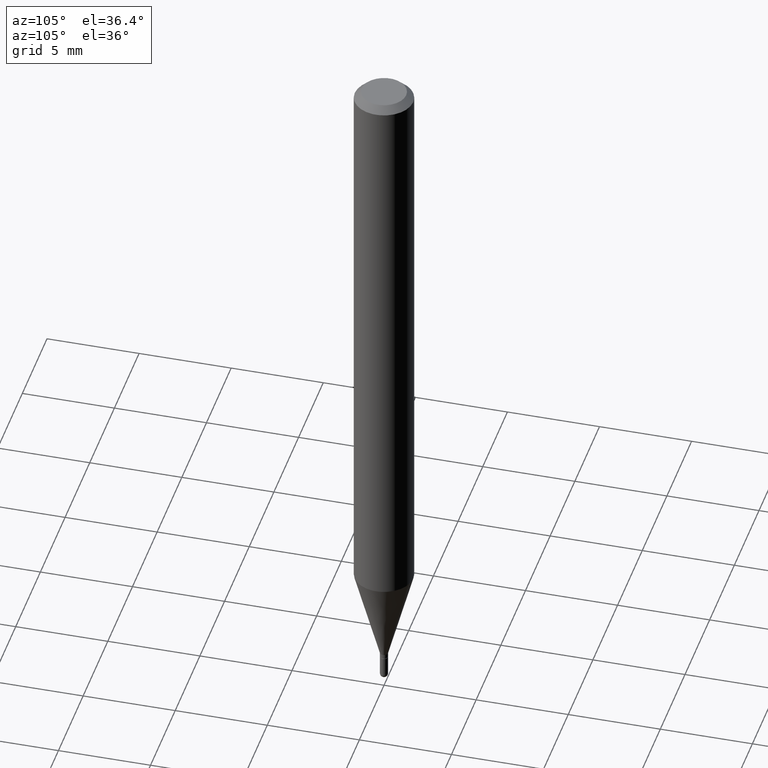
[diagram: clean part render]
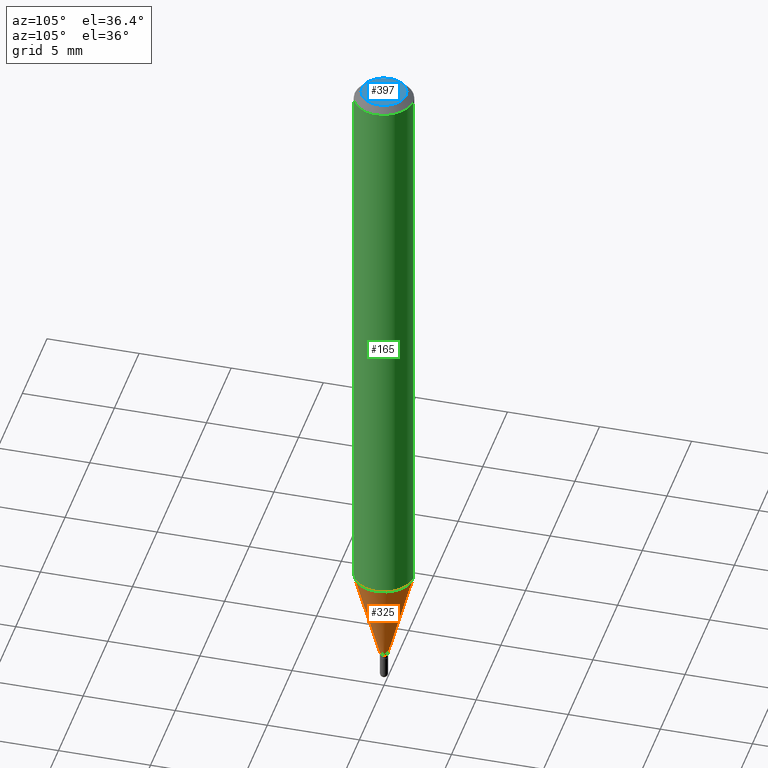
[diagram: same view with three faces highlighted in distinct colors, each labeled with its STEP entity id]
A machine part, auxiliary view with three faces highlighted in distinct colors.
Their STEP definitions:

[orange] entity #325 — the highlighted conical surface has half-angle 15 deg.
#6 = VECTOR ( 'NONE', #143, 39.37007874015748854 ) ;
#7 = ORIENTED_EDGE ( 'NONE', *, *, #223, .T. ) ;
#14 = VECTOR ( 'NONE', #458, 39.37007874015748854 ) ;
#22 = CARTESIAN_POINT ( 'NONE',  ( -5.935518276029754545E-17, -0.008500000000004949777, -1.439000000000000057 ) ) ;
#34 = CARTESIAN_POINT ( 'NONE',  ( 3.519016899302555571E-29, -5.024259852045384731E-15, -1.439000000000000057 ) ) ;
#39 = VERTEX_POINT ( 'NONE', #287 ) ;
#43 = AXIS2_PLACEMENT_3D ( 'NONE', #34, #472, #438 ) ;
#51 = DIRECTION ( 'NONE',  ( -6.982962677686265922E-15, -1.000000000000000000, 4.370956789862821150E-15 ) ) ;
#54 = AXIS2_PLACEMENT_3D ( 'NONE', #410, #172, #279 ) ;
#63 = CARTESIAN_POINT ( 'NONE',  ( 6.039613253964316839E-17, 0.008499999999994900524, -1.439000000000000057 ) ) ;
#64 = CIRCLE ( 'NONE', #54, 0.008499999999999924283 ) ;
#72 = CARTESIAN_POINT ( 'NONE',  ( -4.364351673553615448E-16, -0.06250000000000432987, -1.237469256391281025 ) ) ;
#78 = FACE_OUTER_BOUND ( 'NONE', #442, .T. ) ;
#88 = CARTESIAN_POINT ( 'NONE',  ( 3.026181532736820880E-29, -4.320616471874337683E-15, -1.237469256391281247 ) ) ;
#89 = EDGE_CURVE ( 'NONE', #452, #120, #64, .T. ) ;
#96 = EDGE_CURVE ( 'NONE', #146, #39, #243, .T. ) ;
#102 = LINE ( 'NONE', #22, #14 ) ;
#114 = CONICAL_SURFACE ( 'NONE', #43, 0.008499999999999924283, 0.2617993877991505181 ) ;
#120 = VERTEX_POINT ( 'NONE', #184 ) ;
#143 = DIRECTION ( 'NONE',  ( 1.839019923739601893E-15, 0.2588190451025252359, 0.9659258262890670910 ) ) ;
#146 = VERTEX_POINT ( 'NONE', #72 ) ;
#172 = DIRECTION ( 'NONE',  ( -2.445459971718245083E-29, 3.491493990302560829E-15, 1.000000000000000000 ) ) ;
#184 = CARTESIAN_POINT ( 'NONE',  ( 2.522426711948681826E-16, 0.008499999999994900524, -1.439000000000000057 ) ) ;
#223 = EDGE_CURVE ( 'NONE', #120, #39, #506, .T. ) ;
#243 = CIRCLE ( 'NONE', #347, 0.06250000000000000000 ) ;
#248 = CARTESIAN_POINT ( 'NONE',  ( -5.935518276029754545E-17, -0.008500000000004949777, -1.439000000000000057 ) ) ;
#259 = EDGE_CURVE ( 'NONE', #452, #146, #102, .T. ) ;
#279 = DIRECTION ( 'NONE',  ( -6.982962677686266711E-15, -1.000000000000000000, 0.000000000000000000 ) ) ;
#287 = CARTESIAN_POINT ( 'NONE',  ( 4.440892098500927901E-16, 0.06249999999999569095, -1.237469256391281691 ) ) ;
#325 = ADVANCED_FACE ( 'NONE', ( #78 ), #114, .T. ) ;
#347 = AXIS2_PLACEMENT_3D ( 'NONE', #88, #404, #51 ) ;
#380 = ORIENTED_EDGE ( 'NONE', *, *, #96, .F. ) ;
#404 = DIRECTION ( 'NONE',  ( -2.445459971718245083E-29, 3.491493990302560829E-15, 1.000000000000000000 ) ) ;
#410 = CARTESIAN_POINT ( 'NONE',  ( 3.519016899302555571E-29, -5.024259852045384731E-15, -1.439000000000000057 ) ) ;
#413 = ORIENTED_EDGE ( 'NONE', *, *, #89, .T. ) ;
#438 = DIRECTION ( 'NONE',  ( -6.982962677686266711E-15, -1.000000000000000000, 0.000000000000000000 ) ) ;
#442 = EDGE_LOOP ( 'NONE', ( #413, #7, #380, #512 ) ) ;
#452 = VERTEX_POINT ( 'NONE', #248 ) ;
#458 = DIRECTION ( 'NONE',  ( -1.807323732225331717E-15, -0.2588190451025184080, 0.9659258262890689783 ) ) ;
#472 = DIRECTION ( 'NONE',  ( -2.445459971718245083E-29, 3.491493990302560829E-15, 1.000000000000000000 ) ) ;
#506 = LINE ( 'NONE', #63, #6 ) ;
#512 = ORIENTED_EDGE ( 'NONE', *, *, #259, .F. ) ;

[blue] entity #397 — the highlighted planar face has unit normal (0, -0, -1).
#32 = ORIENTED_EDGE ( 'NONE', *, *, #289, .T. ) ;
#41 = PLANE ( 'NONE',  #260 ) ;
#62 = CARTESIAN_POINT ( 'NONE',  ( -5.856613589596461152E-45, 8.361752548839639788E-31, 2.394892436322091243E-16 ) ) ;
#80 = EDGE_CURVE ( 'NONE', #368, #232, #81, .T. ) ;
#81 = CIRCLE ( 'NONE', #502, 0.04749999999999999362 ) ;
#125 = DIRECTION ( 'NONE',  ( -6.982962677686266711E-15, -1.000000000000000000, 3.491493990302561618E-15 ) ) ;
#153 = CIRCLE ( 'NONE', #420, 0.04749999999999999362 ) ;
#181 = DIRECTION ( 'NONE',  ( -2.445459971718245083E-29, 3.491493990302560829E-15, 1.000000000000000000 ) ) ;
#188 = FACE_OUTER_BOUND ( 'NONE', #299, .T. ) ;
#210 = CARTESIAN_POINT ( 'NONE',  ( -5.856613589596461152E-45, 8.361752548839639788E-31, 2.394892436322091243E-16 ) ) ;
#232 = VERTEX_POINT ( 'NONE', #298 ) ;
#257 = DIRECTION ( 'NONE',  ( -6.982962677686266711E-15, -1.000000000000000000, 3.491493990302561618E-15 ) ) ;
#260 = AXIS2_PLACEMENT_3D ( 'NONE', #467, #350, #306 ) ;
#289 = EDGE_CURVE ( 'NONE', #232, #368, #153, .T. ) ;
#298 = CARTESIAN_POINT ( 'NONE',  ( 3.840629472727447874E-16, 0.04749999999999999362, 7.364327909283752044E-17 ) ) ;
#299 = EDGE_LOOP ( 'NONE', ( #32, #459 ) ) ;
#306 = DIRECTION ( 'NONE',  ( 6.982962677686265922E-15, 1.000000000000000000, -3.491493990302560829E-15 ) ) ;
#350 = DIRECTION ( 'NONE',  ( 2.445459971718244803E-29, -3.491493990302560829E-15, -1.000000000000000000 ) ) ;
#358 = CARTESIAN_POINT ( 'NONE',  ( -3.773273898774340269E-16, -0.04749999999999999362, 4.053352081715807775E-16 ) ) ;
#368 = VERTEX_POINT ( 'NONE', #358 ) ;
#373 = DIRECTION ( 'NONE',  ( -2.445459971718245083E-29, 3.491493990302560829E-15, 1.000000000000000000 ) ) ;
#397 = ADVANCED_FACE ( 'NONE', ( #188 ), #41, .F. ) ;
#420 = AXIS2_PLACEMENT_3D ( 'NONE', #62, #181, #257 ) ;
#459 = ORIENTED_EDGE ( 'NONE', *, *, #80, .T. ) ;
#467 = CARTESIAN_POINT ( 'NONE',  ( 3.316907271900976096E-16, 0.04749999999999999362, -4.610134272326704788E-17 ) ) ;
#502 = AXIS2_PLACEMENT_3D ( 'NONE', #210, #373, #125 ) ;

[green] entity #165 — the highlighted cylindrical surface (edge-blend (fillet) strip) has radius 1.5875 mm, axis along (-0, 0, 1).
#2 = ORIENTED_EDGE ( 'NONE', *, *, #491, .T. ) ;
#11 = ORIENTED_EDGE ( 'NONE', *, *, #96, .T. ) ;
#19 = LINE ( 'NONE', #295, #352 ) ;
#29 = CARTESIAN_POINT ( 'NONE',  ( 4.440892098500930859E-16, 0.06249999999999995143, -0.01499999999999997863 ) ) ;
#39 = VERTEX_POINT ( 'NONE', #287 ) ;
#51 = DIRECTION ( 'NONE',  ( -6.982962677686265922E-15, -1.000000000000000000, 4.370956789862821150E-15 ) ) ;
#59 = DIRECTION ( 'NONE',  ( -6.982962677686265922E-15, -1.000000000000000000, 3.483106191921935554E-15 ) ) ;
#68 = DIRECTION ( 'NONE',  ( -2.445459971718245083E-29, 3.491493990302560829E-15, 1.000000000000000000 ) ) ;
#69 = EDGE_CURVE ( 'NONE', #427, #288, #99, .T. ) ;
#72 = CARTESIAN_POINT ( 'NONE',  ( -4.364351673553615448E-16, -0.06250000000000432987, -1.237469256391281025 ) ) ;
#77 = ORIENTED_EDGE ( 'NONE', *, *, #69, .F. ) ;
#88 = CARTESIAN_POINT ( 'NONE',  ( 3.026181532736820880E-29, -4.320616471874337683E-15, -1.237469256391281247 ) ) ;
#94 = DIRECTION ( 'NONE',  ( -2.445459971718245083E-29, 3.491493990302560829E-15, 1.000000000000000000 ) ) ;
#96 = EDGE_CURVE ( 'NONE', #146, #39, #243, .T. ) ;
#99 = CIRCLE ( 'NONE', #282, 0.06250000000000000000 ) ;
#103 = CYLINDRICAL_SURFACE ( 'NONE', #161, 0.06250000000000000000 ) ;
#106 = VECTOR ( 'NONE', #94, 39.37007874015748143 ) ;
#130 = DIRECTION ( 'NONE',  ( -2.445459971718245083E-29, 3.491493990302560829E-15, 1.000000000000000000 ) ) ;
#132 = EDGE_CURVE ( 'NONE', #146, #427, #19, .T. ) ;
#137 = DIRECTION ( 'NONE',  ( -2.445459971718245083E-29, 3.491493990302560829E-15, 1.000000000000000000 ) ) ;
#146 = VERTEX_POINT ( 'NONE', #72 ) ;
#161 = AXIS2_PLACEMENT_3D ( 'NONE', #187, #137, #341 ) ;
#162 = EDGE_LOOP ( 'NONE', ( #11, #2, #77, #242 ) ) ;
#163 = LINE ( 'NONE', #366, #106 ) ;
#165 = ADVANCED_FACE ( 'NONE', ( #343 ), #103, .T. ) ;
#187 = CARTESIAN_POINT ( 'NONE',  ( 0.000000000000000000, 0.000000000000000000, 0.000000000000000000 ) ) ;
#242 = ORIENTED_EDGE ( 'NONE', *, *, #132, .F. ) ;
#243 = CIRCLE ( 'NONE', #347, 0.06250000000000000000 ) ;
#273 = CARTESIAN_POINT ( 'NONE',  ( -4.364351673553912750E-16, -0.06250000000000005551, -0.01499999999999954321 ) ) ;
#282 = AXIS2_PLACEMENT_3D ( 'NONE', #489, #130, #59 ) ;
#287 = CARTESIAN_POINT ( 'NONE',  ( 4.440892098500927901E-16, 0.06249999999999569095, -1.237469256391281691 ) ) ;
#288 = VERTEX_POINT ( 'NONE', #29 ) ;
#295 = CARTESIAN_POINT ( 'NONE',  ( -4.364351673553916201E-16, -0.06250000000000000000, 2.182183743939100518E-16 ) ) ;
#341 = DIRECTION ( 'NONE',  ( -6.982962677686265922E-15, -1.000000000000000000, 3.491493990302560829E-15 ) ) ;
#343 = FACE_OUTER_BOUND ( 'NONE', #162, .T. ) ;
#347 = AXIS2_PLACEMENT_3D ( 'NONE', #88, #404, #51 ) ;
#352 = VECTOR ( 'NONE', #68, 39.37007874015748143 ) ;
#366 = CARTESIAN_POINT ( 'NONE',  ( 4.440892098500625669E-16, 0.06250000000000000000, -2.182183743939100518E-16 ) ) ;
#404 = DIRECTION ( 'NONE',  ( -2.445459971718245083E-29, 3.491493990302560829E-15, 1.000000000000000000 ) ) ;
#427 = VERTEX_POINT ( 'NONE', #273 ) ;
#489 = CARTESIAN_POINT ( 'NONE',  ( 3.668189957577309261E-31, -5.237240985453757895E-17, -0.01499999999999976179 ) ) ;
#491 = EDGE_CURVE ( 'NONE', #39, #288, #163, .T. ) ;